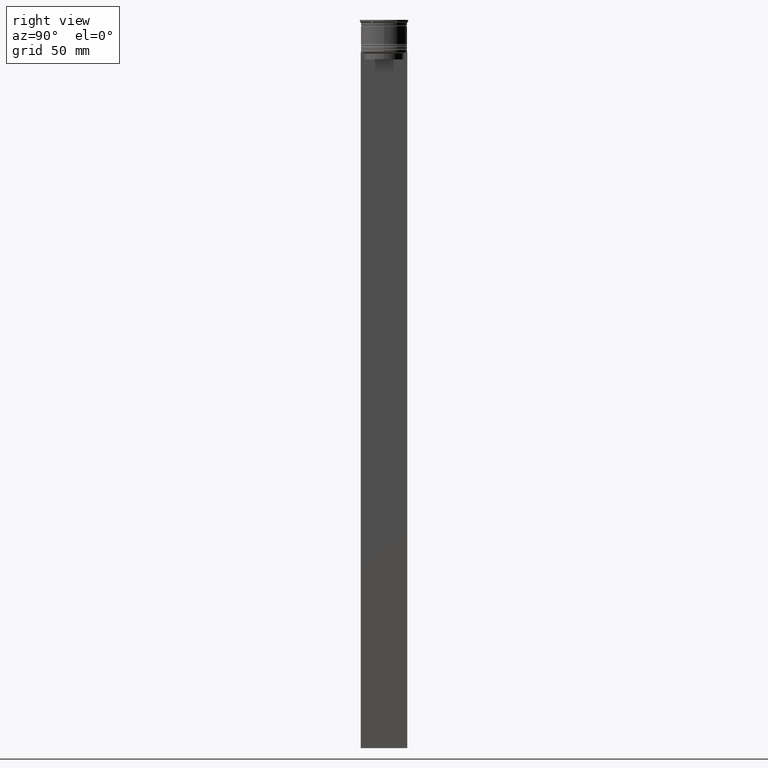
[diagram: clean part render]
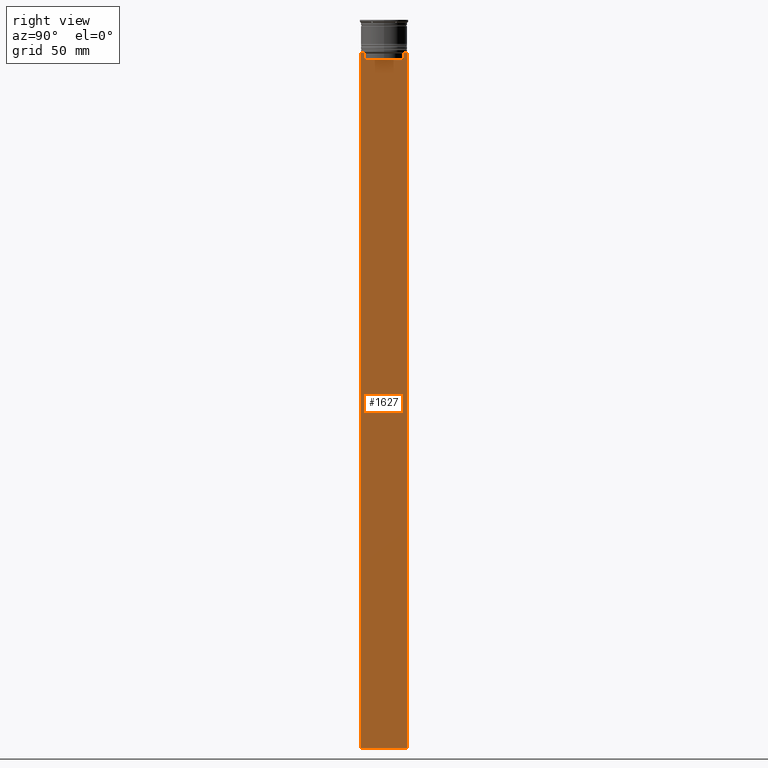
[diagram: same view with one face highlighted and labeled with its STEP entity id]
A machine part, right view. The second image highlights one B-rep face of the part: STEP entity #1627.
In plain terms, the highlighted planar face has unit normal (-1, 0, 0).
Its self-contained STEP definition (entity closure, byte-faithful):
#15 = ORIENTED_EDGE ( 'NONE', *, *, #2670, .F. ) ;
#18 = DIRECTION ( 'NONE',  ( 0.000000000000000000, 0.000000000000000000, -1.000000000000000000 ) ) ;
#61 = LINE ( 'NONE', #636, #290 ) ;
#62 = CARTESIAN_POINT ( 'NONE',  ( 0.5000000000000000000, 8.719005771582347464, -14.16667453442325453 ) ) ;
#65 = VERTEX_POINT ( 'NONE', #2300 ) ;
#68 = EDGE_CURVE ( 'NONE', #723, #273, #61, .T. ) ;
#129 = CARTESIAN_POINT ( 'NONE',  ( 0.5000000000000000000, -10.00000000000000178, -14.00000000000000178 ) ) ;
#156 = ORIENTED_EDGE ( 'NONE', *, *, #2517, .T. ) ;
#172 = LINE ( 'NONE', #1436, #2543 ) ;
#182 = ORIENTED_EDGE ( 'NONE', *, *, #68, .T. ) ;
#219 = DIRECTION ( 'NONE',  ( 0.000000000000000000, -1.000000000000000000, 0.000000000000000000 ) ) ;
#228 = DIRECTION ( 'NONE',  ( 0.000000000000000000, -1.000000000000000000, 0.000000000000000000 ) ) ;
#233 = VERTEX_POINT ( 'NONE', #2421 ) ;
#247 = DIRECTION ( 'NONE',  ( -1.000000000000000000, 0.000000000000000000, 0.000000000000000000 ) ) ;
#273 = VERTEX_POINT ( 'NONE', #2457 ) ;
#290 = VECTOR ( 'NONE', #18, 1000.000000000000000 ) ;
#313 = EDGE_CURVE ( 'NONE', #1040, #2156, #1006, .T. ) ;
#325 = ORIENTED_EDGE ( 'NONE', *, *, #1154, .T. ) ;
#367 = DIRECTION ( 'NONE',  ( 0.000000000000000000, -1.000000000000000000, 0.000000000000000000 ) ) ;
#396 = LINE ( 'NONE', #1243, #1505 ) ;
#417 = ORIENTED_EDGE ( 'NONE', *, *, #796, .T. ) ;
#428 = EDGE_CURVE ( 'NONE', #273, #1089, #2316, .T. ) ;
#436 = CARTESIAN_POINT ( 'NONE',  ( 0.5000000000000000000, 8.885943956609230199, -14.00000000000000178 ) ) ;
#502 = CARTESIAN_POINT ( 'NONE',  ( 0.5000000000000000000, 9.999999999999998224, -314.0000000000000000 ) ) ;
#577 = ORIENTED_EDGE ( 'NONE', *, *, #826, .T. ) ;
#580 = CARTESIAN_POINT ( 'NONE',  ( 0.5000000000000000000, 9.999999999999998224, 6.024984394500783047 ) ) ;
#636 = CARTESIAN_POINT ( 'NONE',  ( 0.5000000000000000000, 8.385105843100616241, 0.000000000000000000 ) ) ;
#671 = DIRECTION ( 'NONE',  ( 0.000000000000000000, -1.000000000000000000, 0.000000000000000000 ) ) ;
#679 = CARTESIAN_POINT ( 'NONE',  ( 0.5000000000000000000, -8.552060194457773434, -14.33334167772667023 ) ) ;
#723 = VERTEX_POINT ( 'NONE', #1218 ) ;
#766 = VERTEX_POINT ( 'NONE', #436 ) ;
#790 = VERTEX_POINT ( 'NONE', #1718 ) ;
#796 = EDGE_CURVE ( 'NONE', #1089, #1234, #2345, .T. ) ;
#826 = EDGE_CURVE ( 'NONE', #2387, #233, #1288, .T. ) ;
#831 = DIRECTION ( 'NONE',  ( 0.000000000000000000, -1.000000000000000000, 0.000000000000000000 ) ) ;
#894 = DIRECTION ( 'NONE',  ( -0.000000000000000000, -0.000000000000000000, 1.000000000000000000 ) ) ;
#929 = PLANE ( 'NONE',  #1847 ) ;
#971 = VERTEX_POINT ( 'NONE', #502 ) ;
#985 = VECTOR ( 'NONE', #219, 1000.000000000000000 ) ;
#1003 = CARTESIAN_POINT ( 'NONE',  ( 0.5000000000000000000, -9.887365675446622149, -14.00000000000000178 ) ) ;
#1006 = LINE ( 'NONE', #2278, #985 ) ;
#1040 = VERTEX_POINT ( 'NONE', #1003 ) ;
#1082 = CARTESIAN_POINT ( 'NONE',  ( 0.5000000000000000000, 8.385105843100616241, -14.50000000000000000 ) ) ;
#1089 = VERTEX_POINT ( 'NONE', #2648 ) ;
#1092 = CARTESIAN_POINT ( 'NONE',  ( 0.5000000000000000000, 9.999999999999998224, -14.00000000000000178 ) ) ;
#1154 = EDGE_CURVE ( 'NONE', #2156, #790, #396, .T. ) ;
#1155 = VECTOR ( 'NONE', #894, 1000.000000000000000 ) ;
#1163 = VECTOR ( 'NONE', #1312, 1000.000000000000000 ) ;
#1170 = ORIENTED_EDGE ( 'NONE', *, *, #2031, .T. ) ;
#1193 = VECTOR ( 'NONE', #671, 1000.000000000000000 ) ;
#1210 = EDGE_CURVE ( 'NONE', #766, #723, #2410, .T. ) ;
#1217 = DIRECTION ( 'NONE',  ( 0.000000000000000000, 0.000000000000000000, -1.000000000000000000 ) ) ;
#1218 = CARTESIAN_POINT ( 'NONE',  ( 0.5000000000000000000, 8.385105843100616241, -14.50000000000000000 ) ) ;
#1226 = EDGE_LOOP ( 'NONE', ( #1170, #1346, #182, #1764, #417, #2046, #156, #1811, #325, #2076, #15, #577 ) ) ;
#1234 = VERTEX_POINT ( 'NONE', #2343 ) ;
#1243 = CARTESIAN_POINT ( 'NONE',  ( 0.5000000000000000000, -10.00000000000000178, 6.024984394500783047 ) ) ;
#1288 = LINE ( 'NONE', #2292, #1758 ) ;
#1291 = DIRECTION ( 'NONE',  ( 0.000000000000000000, 0.000000000000000000, 1.000000000000000000 ) ) ;
#1307 = EDGE_CURVE ( 'NONE', #1234, #65, #2659, .T. ) ;
#1312 = DIRECTION ( 'NONE',  ( 0.000000000000000000, 1.000000000000000000, 0.000000000000000000 ) ) ;
#1322 = CARTESIAN_POINT ( 'NONE',  ( 0.5000000000000000000, -10.00000000000000178, -314.0000000000000000 ) ) ;
#1346 = ORIENTED_EDGE ( 'NONE', *, *, #1210, .T. ) ;
#1436 = CARTESIAN_POINT ( 'NONE',  ( 0.5000000000000000000, -10.00000000000000178, -14.00000000000000178 ) ) ;
#1493 = CARTESIAN_POINT ( 'NONE',  ( 0.5000000000000000000, -10.00000000000000178, 6.024984394500783047 ) ) ;
#1501 = CARTESIAN_POINT ( 'NONE',  ( 0.5000000000000000000, -8.719005764482790966, -14.16667454151159689 ) ) ;
#1505 = VECTOR ( 'NONE', #1217, 1000.000000000000000 ) ;
#1554 = LINE ( 'NONE', #1322, #1163 ) ;
#1627 = ADVANCED_FACE ( 'NONE', ( #1749 ), #929, .F. ) ;
#1634 = VECTOR ( 'NONE', #831, 1000.000000000000000 ) ;
#1713 = CARTESIAN_POINT ( 'NONE',  ( 0.5000000000000000000, 8.552060201981378285, -14.33334167021640582 ) ) ;
#1718 = CARTESIAN_POINT ( 'NONE',  ( 0.5000000000000000000, -10.00000000000000178, -314.0000000000000000 ) ) ;
#1721 = CARTESIAN_POINT ( 'NONE',  ( 0.5000000000000000000, 8.400000000000003908, -17.00000000000000000 ) ) ;
#1749 = FACE_OUTER_BOUND ( 'NONE', #1226, .T. ) ;
#1758 = VECTOR ( 'NONE', #228, 1000.000000000000000 ) ;
#1764 = ORIENTED_EDGE ( 'NONE', *, *, #428, .T. ) ;
#1811 = ORIENTED_EDGE ( 'NONE', *, *, #313, .T. ) ;
#1847 = AXIS2_PLACEMENT_3D ( 'NONE', #1493, #247, #1291 ) ;
#1873 = CARTESIAN_POINT ( 'NONE',  ( 0.5000000000000000000, -10.00000000000000178, -14.00000000000000178 ) ) ;
#1908 = CARTESIAN_POINT ( 'NONE',  ( 0.5000000000000000000, 8.885943956609230199, -14.00000000000000178 ) ) ;
#1965 = EDGE_CURVE ( 'NONE', #790, #971, #1554, .T. ) ;
#1986 = LINE ( 'NONE', #129, #1634 ) ;
#2031 = EDGE_CURVE ( 'NONE', #233, #766, #172, .T. ) ;
#2046 = ORIENTED_EDGE ( 'NONE', *, *, #1307, .T. ) ;
#2050 = DIRECTION ( 'NONE',  ( 0.000000000000000000, 0.000000000000000000, -1.000000000000000000 ) ) ;
#2076 = ORIENTED_EDGE ( 'NONE', *, *, #1965, .T. ) ;
#2093 = CARTESIAN_POINT ( 'NONE',  ( 0.5000000000000000000, -8.385105843100616241, -14.50000000000000000 ) ) ;
#2127 = CARTESIAN_POINT ( 'NONE',  ( 0.5000000000000000000, -8.385105843100616241, 0.000000000000000000 ) ) ;
#2156 = VERTEX_POINT ( 'NONE', #1873 ) ;
#2255 = LINE ( 'NONE', #580, #2672 ) ;
#2278 = CARTESIAN_POINT ( 'NONE',  ( 0.5000000000000000000, -10.00000000000000178, -14.00000000000000178 ) ) ;
#2292 = CARTESIAN_POINT ( 'NONE',  ( 0.5000000000000000000, -10.00000000000000178, -14.00000000000000178 ) ) ;
#2300 = CARTESIAN_POINT ( 'NONE',  ( 0.5000000000000000000, -8.885943956609230199, -14.00000000000000178 ) ) ;
#2316 = LINE ( 'NONE', #1721, #1193 ) ;
#2329 = CARTESIAN_POINT ( 'NONE',  ( 0.5000000000000000000, -8.885943956609230199, -14.00000000000000178 ) ) ;
#2343 = CARTESIAN_POINT ( 'NONE',  ( 0.5000000000000000000, -8.385105843100616241, -14.50000000000000000 ) ) ;
#2345 = LINE ( 'NONE', #2127, #1155 ) ;
#2387 = VERTEX_POINT ( 'NONE', #1092 ) ;
#2410 = B_SPLINE_CURVE_WITH_KNOTS ( 'NONE', 3,
 ( #1908, #62, #1713, #1082 ),
 .UNSPECIFIED., .F., .F.,
 ( 4, 4 ),
 ( 0.01511546479386908018, 0.01582316445439079997 ),
 .UNSPECIFIED. ) ;
#2421 = CARTESIAN_POINT ( 'NONE',  ( 0.5000000000000000000, 9.887365675446622149, -14.00000000000000178 ) ) ;
#2457 = CARTESIAN_POINT ( 'NONE',  ( 0.5000000000000000000, 8.385105843100616241, -17.00000000000000000 ) ) ;
#2517 = EDGE_CURVE ( 'NONE', #65, #1040, #1986, .T. ) ;
#2543 = VECTOR ( 'NONE', #367, 1000.000000000000000 ) ;
#2648 = CARTESIAN_POINT ( 'NONE',  ( 0.5000000000000000000, -8.385105843100616241, -17.00000000000000000 ) ) ;
#2659 = B_SPLINE_CURVE_WITH_KNOTS ( 'NONE', 3,
 ( #2093, #679, #1501, #2329 ),
 .UNSPECIFIED., .F., .F.,
 ( 4, 4 ),
 ( 0.03898465126933130243, 0.03969388910599658260 ),
 .UNSPECIFIED. ) ;
#2670 = EDGE_CURVE ( 'NONE', #2387, #971, #2255, .T. ) ;
#2672 = VECTOR ( 'NONE', #2050, 1000.000000000000000 ) ;